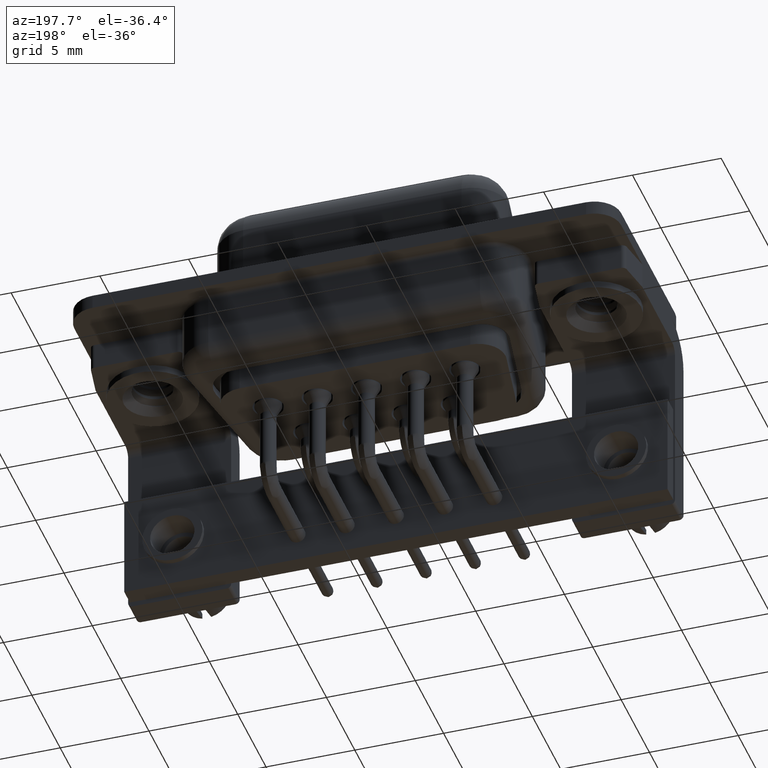
[diagram: clean part render]
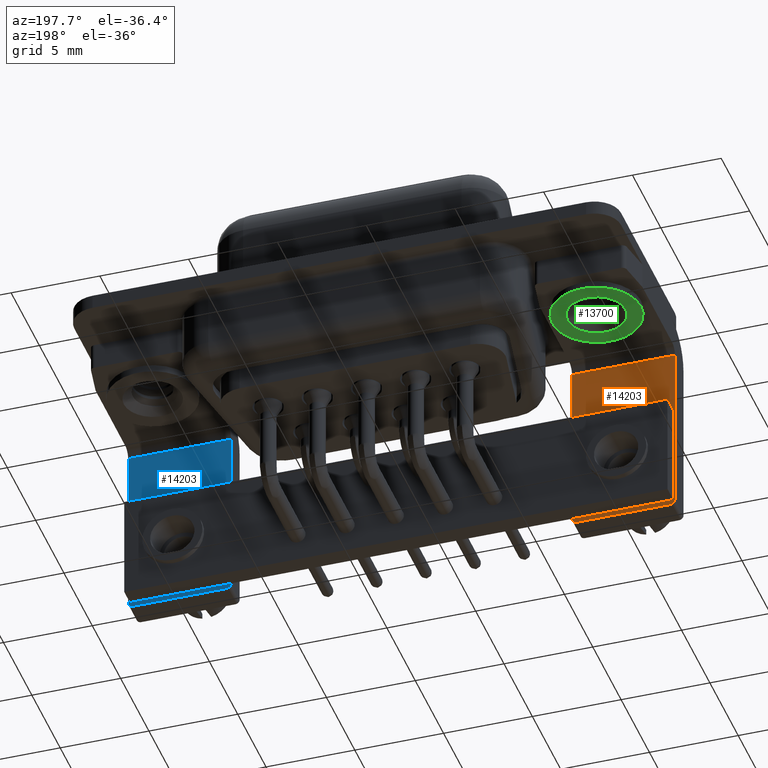
[diagram: same view with three faces highlighted in distinct colors, each labeled with its STEP entity id]
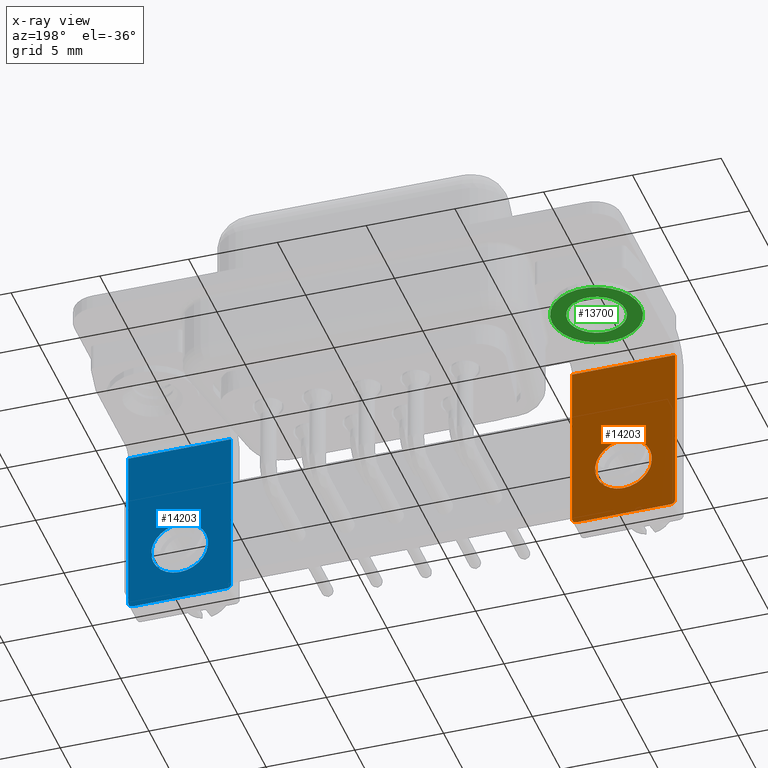
[diagram: x-ray of the same camera — body ghosted, the three highlighted faces saturated]
A machine part, auxiliary view with three faces highlighted in distinct colors.
The next image is the same camera in x-ray (body ghosted, the three faces saturated) — at least one of them is partly hidden behind the body in this view.
Their STEP definitions:

[orange] entity #14203 — the highlighted planar face has unit normal (0, -1, 0).
#84 = CARTESIAN_POINT ( 'NONE',  ( -2.899999999999999900, -4.749999999999999100, -12.05000000000000100 ) ) ;
#296 = DIRECTION ( 'NONE',  ( -0.0000000000000000000, 1.000000000000000000, -0.0000000000000000000 ) ) ;
#334 = EDGE_CURVE ( 'NONE', #9421, #8657, #7129, .T. ) ;
#359 = EDGE_CURVE ( 'NONE', #17620, #1261, #10589, .T. ) ;
#727 = DIRECTION ( 'NONE',  ( 0.0000000000000000000, 0.0000000000000000000, -1.000000000000000000 ) ) ;
#786 = EDGE_LOOP ( 'NONE', ( #1040, #7907 ) ) ;
#1040 = ORIENTED_EDGE ( 'NONE', *, *, #8285, .F. ) ;
#1261 = VERTEX_POINT ( 'NONE', #1810 ) ;
#1794 = CARTESIAN_POINT ( 'NONE',  ( 0.0000000000000000000, -4.749999999999998200, -9.009999999999999800 ) ) ;
#1810 = CARTESIAN_POINT ( 'NONE',  ( -2.899999999999999900, -4.749999999999999100, -2.400000000000001200 ) ) ;
#2258 = VECTOR ( 'NONE', #14465, 1000.000000000000000 ) ;
#2719 = DIRECTION ( 'NONE',  ( 0.0000000000000000000, -1.000000000000000000, 0.0000000000000000000 ) ) ;
#3046 = ORIENTED_EDGE ( 'NONE', *, *, #15539, .T. ) ;
#3278 = DIRECTION ( 'NONE',  ( 0.0000000000000000000, 0.0000000000000000000, 1.000000000000000000 ) ) ;
#3320 = EDGE_CURVE ( 'NONE', #8340, #7163, #7524, .T. ) ;
#3917 = CARTESIAN_POINT ( 'NONE',  ( 0.0000000000000000000, -4.749999999999998200, -7.410000000000000100 ) ) ;
#3946 = VECTOR ( 'NONE', #17070, 1000.000000000000000 ) ;
#4147 = FACE_OUTER_BOUND ( 'NONE', #9102, .T. ) ;
#4255 = ORIENTED_EDGE ( 'NONE', *, *, #11978, .T. ) ;
#5237 = AXIS2_PLACEMENT_3D ( 'NONE', #9136, #296, #10617 ) ;
#5272 = ORIENTED_EDGE ( 'NONE', *, *, #359, .F. ) ;
#5662 = CARTESIAN_POINT ( 'NONE',  ( -2.899999999999999900, -4.749999999999999100, -12.30000000000000100 ) ) ;
#6182 = LINE ( 'NONE', #5662, #2258 ) ;
#6469 = CARTESIAN_POINT ( 'NONE',  ( 1.959434878635766700E-016, -4.749999999999998200, -10.61000000000000100 ) ) ;
#6651 = VECTOR ( 'NONE', #15518, 1000.000000000000000 ) ;
#7129 = CIRCLE ( 'NONE', #7156, 1.600000000000000800 ) ;
#7156 = AXIS2_PLACEMENT_3D ( 'NONE', #10652, #7678, #18792 ) ;
#7163 = VERTEX_POINT ( 'NONE', #12704 ) ;
#7440 = CARTESIAN_POINT ( 'NONE',  ( 2.899999999999999900, -4.749999999999999100, -2.400000000000001200 ) ) ;
#7524 = LINE ( 'NONE', #17066, #14855 ) ;
#7678 = DIRECTION ( 'NONE',  ( 0.0000000000000000000, 1.000000000000000000, 8.761229676650543400E-017 ) ) ;
#7862 = ORIENTED_EDGE ( 'NONE', *, *, #10619, .F. ) ;
#7907 = ORIENTED_EDGE ( 'NONE', *, *, #334, .F. ) ;
#8285 = EDGE_CURVE ( 'NONE', #8657, #9421, #12641, .T. ) ;
#8340 = VERTEX_POINT ( 'NONE', #10713 ) ;
#8576 = VERTEX_POINT ( 'NONE', #15575 ) ;
#8657 = VERTEX_POINT ( 'NONE', #3917 ) ;
#9102 = EDGE_LOOP ( 'NONE', ( #9364, #11030, #3046, #5272, #7862, #4255 ) ) ;
#9136 = CARTESIAN_POINT ( 'NONE',  ( -2.649999999999999500, -4.749999999999999100, -12.05000000000000100 ) ) ;
#9182 = AXIS2_PLACEMENT_3D ( 'NONE', #15918, #2719, #13005 ) ;
#9364 = ORIENTED_EDGE ( 'NONE', *, *, #3320, .T. ) ;
#9421 = VERTEX_POINT ( 'NONE', #6469 ) ;
#9574 = DIRECTION ( 'NONE',  ( -0.0000000000000000000, 1.000000000000000000, -0.0000000000000000000 ) ) ;
#10063 = PLANE ( 'NONE',  #9182 ) ;
#10589 = LINE ( 'NONE', #7440, #6651 ) ;
#10617 = DIRECTION ( 'NONE',  ( 0.0000000000000000000, 0.0000000000000000000, -1.000000000000000000 ) ) ;
#10619 = EDGE_CURVE ( 'NONE', #8576, #17620, #11809, .T. ) ;
#10652 = CARTESIAN_POINT ( 'NONE',  ( 0.0000000000000000000, -4.749999999999998200, -9.009999999999999800 ) ) ;
#10713 = CARTESIAN_POINT ( 'NONE',  ( 2.649999999999999500, -4.749999999999999100, -12.30000000000000100 ) ) ;
#11030 = ORIENTED_EDGE ( 'NONE', *, *, #13194, .T. ) ;
#11497 = CIRCLE ( 'NONE', #5237, 0.2500000000000002200 ) ;
#11809 = LINE ( 'NONE', #14131, #3946 ) ;
#11978 = EDGE_CURVE ( 'NONE', #8576, #8340, #13784, .T. ) ;
#12023 = AXIS2_PLACEMENT_3D ( 'NONE', #18404, #9574, #727 ) ;
#12131 = DIRECTION ( 'NONE',  ( 0.0000000000000000000, 1.000000000000000000, 8.761229676650543400E-017 ) ) ;
#12641 = CIRCLE ( 'NONE', #13879, 1.600000000000000800 ) ;
#12704 = CARTESIAN_POINT ( 'NONE',  ( -2.649999999999999500, -4.749999999999999100, -12.30000000000000100 ) ) ;
#13005 = DIRECTION ( 'NONE',  ( 0.0000000000000000000, -0.0000000000000000000, -1.000000000000000000 ) ) ;
#13194 = EDGE_CURVE ( 'NONE', #7163, #13710, #11497, .T. ) ;
#13676 = DIRECTION ( 'NONE',  ( -1.000000000000000000, -0.0000000000000000000, -0.0000000000000000000 ) ) ;
#13710 = VERTEX_POINT ( 'NONE', #84 ) ;
#13784 = CIRCLE ( 'NONE', #12023, 0.2500000000000002200 ) ;
#13879 = AXIS2_PLACEMENT_3D ( 'NONE', #1794, #12131, #3278 ) ;
#14131 = CARTESIAN_POINT ( 'NONE',  ( 2.899999999999999900, -4.749999999999999100, -12.30000000000000100 ) ) ;
#14203 = ADVANCED_FACE ( 'NONE', ( #15435, #4147 ), #10063, .F. ) ;
#14465 = DIRECTION ( 'NONE',  ( 0.0000000000000000000, 0.0000000000000000000, 1.000000000000000000 ) ) ;
#14784 = CARTESIAN_POINT ( 'NONE',  ( 2.899999999999999900, -4.749999999999999100, -2.400000000000001200 ) ) ;
#14855 = VECTOR ( 'NONE', #13676, 1000.000000000000000 ) ;
#15435 = FACE_BOUND ( 'NONE', #786, .T. ) ;
#15518 = DIRECTION ( 'NONE',  ( -1.000000000000000000, -0.0000000000000000000, -0.0000000000000000000 ) ) ;
#15539 = EDGE_CURVE ( 'NONE', #13710, #1261, #6182, .T. ) ;
#15575 = CARTESIAN_POINT ( 'NONE',  ( 2.899999999999999900, -4.749999999999999100, -12.05000000000000100 ) ) ;
#15918 = CARTESIAN_POINT ( 'NONE',  ( 2.899999999999999900, -4.749999999999999100, -12.30000000000000100 ) ) ;
#17066 = CARTESIAN_POINT ( 'NONE',  ( 2.899999999999999900, -4.749999999999999100, -12.30000000000000100 ) ) ;
#17070 = DIRECTION ( 'NONE',  ( 0.0000000000000000000, 0.0000000000000000000, 1.000000000000000000 ) ) ;
#17620 = VERTEX_POINT ( 'NONE', #14784 ) ;
#18404 = CARTESIAN_POINT ( 'NONE',  ( 2.649999999999999500, -4.749999999999999100, -12.05000000000000100 ) ) ;
#18792 = DIRECTION ( 'NONE',  ( 0.0000000000000000000, 0.0000000000000000000, 1.000000000000000000 ) ) ;

[blue] entity #14203 — the highlighted planar face has unit normal (0, -1, 0).
#84 = CARTESIAN_POINT ( 'NONE',  ( -2.899999999999999900, -4.749999999999999100, -12.05000000000000100 ) ) ;
#296 = DIRECTION ( 'NONE',  ( -0.0000000000000000000, 1.000000000000000000, -0.0000000000000000000 ) ) ;
#334 = EDGE_CURVE ( 'NONE', #9421, #8657, #7129, .T. ) ;
#359 = EDGE_CURVE ( 'NONE', #17620, #1261, #10589, .T. ) ;
#727 = DIRECTION ( 'NONE',  ( 0.0000000000000000000, 0.0000000000000000000, -1.000000000000000000 ) ) ;
#786 = EDGE_LOOP ( 'NONE', ( #1040, #7907 ) ) ;
#1040 = ORIENTED_EDGE ( 'NONE', *, *, #8285, .F. ) ;
#1261 = VERTEX_POINT ( 'NONE', #1810 ) ;
#1794 = CARTESIAN_POINT ( 'NONE',  ( 0.0000000000000000000, -4.749999999999998200, -9.009999999999999800 ) ) ;
#1810 = CARTESIAN_POINT ( 'NONE',  ( -2.899999999999999900, -4.749999999999999100, -2.400000000000001200 ) ) ;
#2258 = VECTOR ( 'NONE', #14465, 1000.000000000000000 ) ;
#2719 = DIRECTION ( 'NONE',  ( 0.0000000000000000000, -1.000000000000000000, 0.0000000000000000000 ) ) ;
#3046 = ORIENTED_EDGE ( 'NONE', *, *, #15539, .T. ) ;
#3278 = DIRECTION ( 'NONE',  ( 0.0000000000000000000, 0.0000000000000000000, 1.000000000000000000 ) ) ;
#3320 = EDGE_CURVE ( 'NONE', #8340, #7163, #7524, .T. ) ;
#3917 = CARTESIAN_POINT ( 'NONE',  ( 0.0000000000000000000, -4.749999999999998200, -7.410000000000000100 ) ) ;
#3946 = VECTOR ( 'NONE', #17070, 1000.000000000000000 ) ;
#4147 = FACE_OUTER_BOUND ( 'NONE', #9102, .T. ) ;
#4255 = ORIENTED_EDGE ( 'NONE', *, *, #11978, .T. ) ;
#5237 = AXIS2_PLACEMENT_3D ( 'NONE', #9136, #296, #10617 ) ;
#5272 = ORIENTED_EDGE ( 'NONE', *, *, #359, .F. ) ;
#5662 = CARTESIAN_POINT ( 'NONE',  ( -2.899999999999999900, -4.749999999999999100, -12.30000000000000100 ) ) ;
#6182 = LINE ( 'NONE', #5662, #2258 ) ;
#6469 = CARTESIAN_POINT ( 'NONE',  ( 1.959434878635766700E-016, -4.749999999999998200, -10.61000000000000100 ) ) ;
#6651 = VECTOR ( 'NONE', #15518, 1000.000000000000000 ) ;
#7129 = CIRCLE ( 'NONE', #7156, 1.600000000000000800 ) ;
#7156 = AXIS2_PLACEMENT_3D ( 'NONE', #10652, #7678, #18792 ) ;
#7163 = VERTEX_POINT ( 'NONE', #12704 ) ;
#7440 = CARTESIAN_POINT ( 'NONE',  ( 2.899999999999999900, -4.749999999999999100, -2.400000000000001200 ) ) ;
#7524 = LINE ( 'NONE', #17066, #14855 ) ;
#7678 = DIRECTION ( 'NONE',  ( 0.0000000000000000000, 1.000000000000000000, 8.761229676650543400E-017 ) ) ;
#7862 = ORIENTED_EDGE ( 'NONE', *, *, #10619, .F. ) ;
#7907 = ORIENTED_EDGE ( 'NONE', *, *, #334, .F. ) ;
#8285 = EDGE_CURVE ( 'NONE', #8657, #9421, #12641, .T. ) ;
#8340 = VERTEX_POINT ( 'NONE', #10713 ) ;
#8576 = VERTEX_POINT ( 'NONE', #15575 ) ;
#8657 = VERTEX_POINT ( 'NONE', #3917 ) ;
#9102 = EDGE_LOOP ( 'NONE', ( #9364, #11030, #3046, #5272, #7862, #4255 ) ) ;
#9136 = CARTESIAN_POINT ( 'NONE',  ( -2.649999999999999500, -4.749999999999999100, -12.05000000000000100 ) ) ;
#9182 = AXIS2_PLACEMENT_3D ( 'NONE', #15918, #2719, #13005 ) ;
#9364 = ORIENTED_EDGE ( 'NONE', *, *, #3320, .T. ) ;
#9421 = VERTEX_POINT ( 'NONE', #6469 ) ;
#9574 = DIRECTION ( 'NONE',  ( -0.0000000000000000000, 1.000000000000000000, -0.0000000000000000000 ) ) ;
#10063 = PLANE ( 'NONE',  #9182 ) ;
#10589 = LINE ( 'NONE', #7440, #6651 ) ;
#10617 = DIRECTION ( 'NONE',  ( 0.0000000000000000000, 0.0000000000000000000, -1.000000000000000000 ) ) ;
#10619 = EDGE_CURVE ( 'NONE', #8576, #17620, #11809, .T. ) ;
#10652 = CARTESIAN_POINT ( 'NONE',  ( 0.0000000000000000000, -4.749999999999998200, -9.009999999999999800 ) ) ;
#10713 = CARTESIAN_POINT ( 'NONE',  ( 2.649999999999999500, -4.749999999999999100, -12.30000000000000100 ) ) ;
#11030 = ORIENTED_EDGE ( 'NONE', *, *, #13194, .T. ) ;
#11497 = CIRCLE ( 'NONE', #5237, 0.2500000000000002200 ) ;
#11809 = LINE ( 'NONE', #14131, #3946 ) ;
#11978 = EDGE_CURVE ( 'NONE', #8576, #8340, #13784, .T. ) ;
#12023 = AXIS2_PLACEMENT_3D ( 'NONE', #18404, #9574, #727 ) ;
#12131 = DIRECTION ( 'NONE',  ( 0.0000000000000000000, 1.000000000000000000, 8.761229676650543400E-017 ) ) ;
#12641 = CIRCLE ( 'NONE', #13879, 1.600000000000000800 ) ;
#12704 = CARTESIAN_POINT ( 'NONE',  ( -2.649999999999999500, -4.749999999999999100, -12.30000000000000100 ) ) ;
#13005 = DIRECTION ( 'NONE',  ( 0.0000000000000000000, -0.0000000000000000000, -1.000000000000000000 ) ) ;
#13194 = EDGE_CURVE ( 'NONE', #7163, #13710, #11497, .T. ) ;
#13676 = DIRECTION ( 'NONE',  ( -1.000000000000000000, -0.0000000000000000000, -0.0000000000000000000 ) ) ;
#13710 = VERTEX_POINT ( 'NONE', #84 ) ;
#13784 = CIRCLE ( 'NONE', #12023, 0.2500000000000002200 ) ;
#13879 = AXIS2_PLACEMENT_3D ( 'NONE', #1794, #12131, #3278 ) ;
#14131 = CARTESIAN_POINT ( 'NONE',  ( 2.899999999999999900, -4.749999999999999100, -12.30000000000000100 ) ) ;
#14203 = ADVANCED_FACE ( 'NONE', ( #15435, #4147 ), #10063, .F. ) ;
#14465 = DIRECTION ( 'NONE',  ( 0.0000000000000000000, 0.0000000000000000000, 1.000000000000000000 ) ) ;
#14784 = CARTESIAN_POINT ( 'NONE',  ( 2.899999999999999900, -4.749999999999999100, -2.400000000000001200 ) ) ;
#14855 = VECTOR ( 'NONE', #13676, 1000.000000000000000 ) ;
#15435 = FACE_BOUND ( 'NONE', #786, .T. ) ;
#15518 = DIRECTION ( 'NONE',  ( -1.000000000000000000, -0.0000000000000000000, -0.0000000000000000000 ) ) ;
#15539 = EDGE_CURVE ( 'NONE', #13710, #1261, #6182, .T. ) ;
#15575 = CARTESIAN_POINT ( 'NONE',  ( 2.899999999999999900, -4.749999999999999100, -12.05000000000000100 ) ) ;
#15918 = CARTESIAN_POINT ( 'NONE',  ( 2.899999999999999900, -4.749999999999999100, -12.30000000000000100 ) ) ;
#17066 = CARTESIAN_POINT ( 'NONE',  ( 2.899999999999999900, -4.749999999999999100, -12.30000000000000100 ) ) ;
#17070 = DIRECTION ( 'NONE',  ( 0.0000000000000000000, 0.0000000000000000000, 1.000000000000000000 ) ) ;
#17620 = VERTEX_POINT ( 'NONE', #14784 ) ;
#18404 = CARTESIAN_POINT ( 'NONE',  ( 2.649999999999999500, -4.749999999999999100, -12.05000000000000100 ) ) ;
#18792 = DIRECTION ( 'NONE',  ( 0.0000000000000000000, 0.0000000000000000000, 1.000000000000000000 ) ) ;

[green] entity #13700 — the highlighted planar face has unit normal (0, 0, 1).
#274 = EDGE_CURVE ( 'NONE', #15508, #8116, #8523, .T. ) ;
#934 = CARTESIAN_POINT ( 'NONE',  ( 0.0000000000000000000, 0.0000000000000000000, -2.400000000000000800 ) ) ;
#991 = DIRECTION ( 'NONE',  ( 1.000000000000000000, 0.0000000000000000000, 0.0000000000000000000 ) ) ;
#1880 = CIRCLE ( 'NONE', #10313, 1.630299999999999900 ) ;
#2192 = AXIS2_PLACEMENT_3D ( 'NONE', #17927, #18382, #7931 ) ;
#2407 = DIRECTION ( 'NONE',  ( 1.000000000000000000, 0.0000000000000000000, 0.0000000000000000000 ) ) ;
#2981 = CARTESIAN_POINT ( 'NONE',  ( 0.0000000000000000000, 2.500000000000000000, -2.400000000000000800 ) ) ;
#3287 = CARTESIAN_POINT ( 'NONE',  ( 1.630299999999999900, 1.996541676649929600E-016, -2.400000000000000800 ) ) ;
#3809 = EDGE_LOOP ( 'NONE', ( #6570, #4496 ) ) ;
#3999 = CARTESIAN_POINT ( 'NONE',  ( -2.500000000000000000, 3.061616997868383100E-016, -2.400000000000000800 ) ) ;
#4496 = ORIENTED_EDGE ( 'NONE', *, *, #6031, .T. ) ;
#4628 = ORIENTED_EDGE ( 'NONE', *, *, #16709, .F. ) ;
#5944 = DIRECTION ( 'NONE',  ( 1.000000000000000000, 0.0000000000000000000, 0.0000000000000000000 ) ) ;
#6031 = EDGE_CURVE ( 'NONE', #17092, #16629, #1880, .T. ) ;
#6570 = ORIENTED_EDGE ( 'NONE', *, *, #9560, .T. ) ;
#7083 = CARTESIAN_POINT ( 'NONE',  ( 2.500000000000000000, 0.0000000000000000000, -2.400000000000000800 ) ) ;
#7472 = CARTESIAN_POINT ( 'NONE',  ( 0.0000000000000000000, 0.0000000000000000000, -2.400000000000000800 ) ) ;
#7931 = DIRECTION ( 'NONE',  ( 1.000000000000000000, 0.0000000000000000000, 0.0000000000000000000 ) ) ;
#8116 = VERTEX_POINT ( 'NONE', #3999 ) ;
#8523 = CIRCLE ( 'NONE', #2192, 2.500000000000000000 ) ;
#8946 = DIRECTION ( 'NONE',  ( 1.000000000000000000, 0.0000000000000000000, 0.0000000000000000000 ) ) ;
#9560 = EDGE_CURVE ( 'NONE', #16629, #17092, #18775, .T. ) ;
#9825 = DIRECTION ( 'NONE',  ( -0.0000000000000000000, -0.0000000000000000000, 1.000000000000000000 ) ) ;
#10313 = AXIS2_PLACEMENT_3D ( 'NONE', #7472, #17780, #8946 ) ;
#11249 = DIRECTION ( 'NONE',  ( -0.0000000000000000000, -0.0000000000000000000, 1.000000000000000000 ) ) ;
#13044 = CIRCLE ( 'NONE', #16729, 2.500000000000000000 ) ;
#13700 = ADVANCED_FACE ( 'NONE', ( #18491, #14974 ), #16205, .F. ) ;
#13789 = EDGE_LOOP ( 'NONE', ( #17973, #4628 ) ) ;
#13907 = CARTESIAN_POINT ( 'NONE',  ( -1.630299999999999900, 0.0000000000000000000, -2.400000000000000800 ) ) ;
#14553 = AXIS2_PLACEMENT_3D ( 'NONE', #2981, #14750, #5944 ) ;
#14750 = DIRECTION ( 'NONE',  ( 0.0000000000000000000, -0.0000000000000000000, 1.000000000000000000 ) ) ;
#14974 = FACE_BOUND ( 'NONE', #3809, .T. ) ;
#15508 = VERTEX_POINT ( 'NONE', #7083 ) ;
#16042 = AXIS2_PLACEMENT_3D ( 'NONE', #934, #11249, #2407 ) ;
#16205 = PLANE ( 'NONE',  #14553 ) ;
#16629 = VERTEX_POINT ( 'NONE', #13907 ) ;
#16709 = EDGE_CURVE ( 'NONE', #8116, #15508, #13044, .T. ) ;
#16729 = AXIS2_PLACEMENT_3D ( 'NONE', #18673, #9825, #991 ) ;
#17092 = VERTEX_POINT ( 'NONE', #3287 ) ;
#17780 = DIRECTION ( 'NONE',  ( -0.0000000000000000000, -0.0000000000000000000, 1.000000000000000000 ) ) ;
#17927 = CARTESIAN_POINT ( 'NONE',  ( 0.0000000000000000000, 0.0000000000000000000, -2.400000000000000800 ) ) ;
#17973 = ORIENTED_EDGE ( 'NONE', *, *, #274, .F. ) ;
#18382 = DIRECTION ( 'NONE',  ( -0.0000000000000000000, -0.0000000000000000000, 1.000000000000000000 ) ) ;
#18491 = FACE_OUTER_BOUND ( 'NONE', #13789, .T. ) ;
#18673 = CARTESIAN_POINT ( 'NONE',  ( 0.0000000000000000000, 0.0000000000000000000, -2.400000000000000800 ) ) ;
#18775 = CIRCLE ( 'NONE', #16042, 1.630299999999999900 ) ;